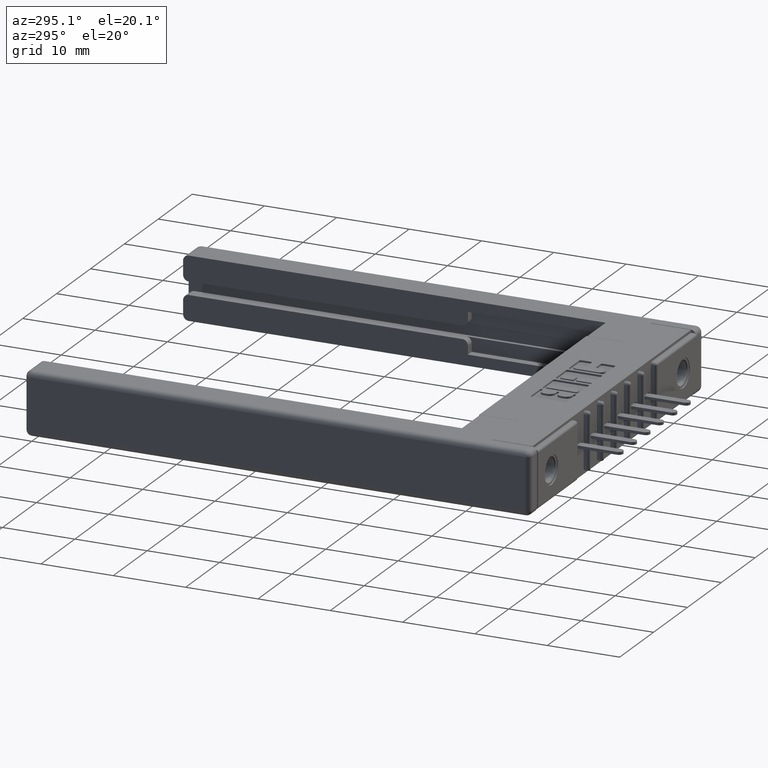
[diagram: clean part render]
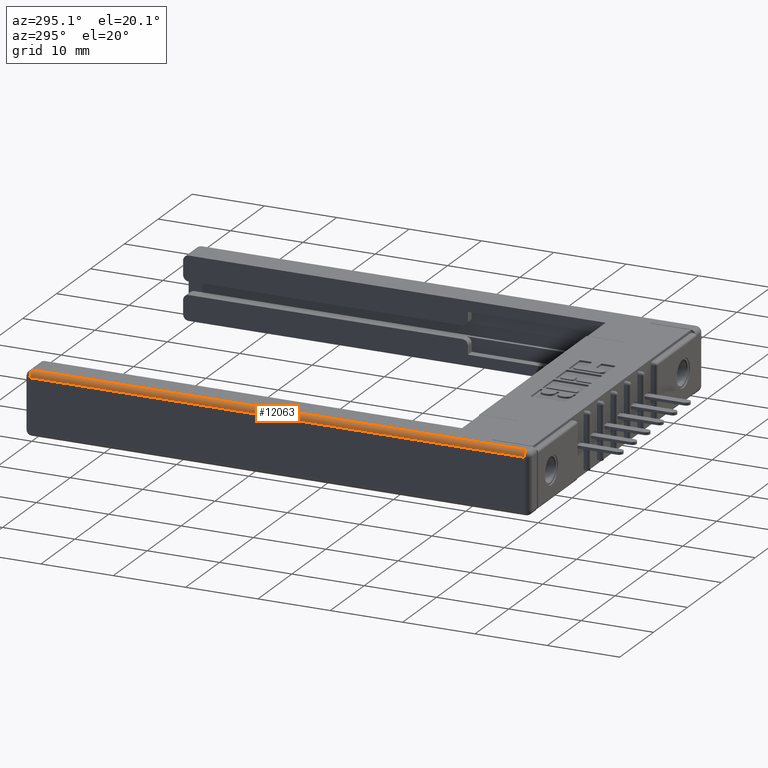
[diagram: same view with one face highlighted and labeled with its STEP entity id]
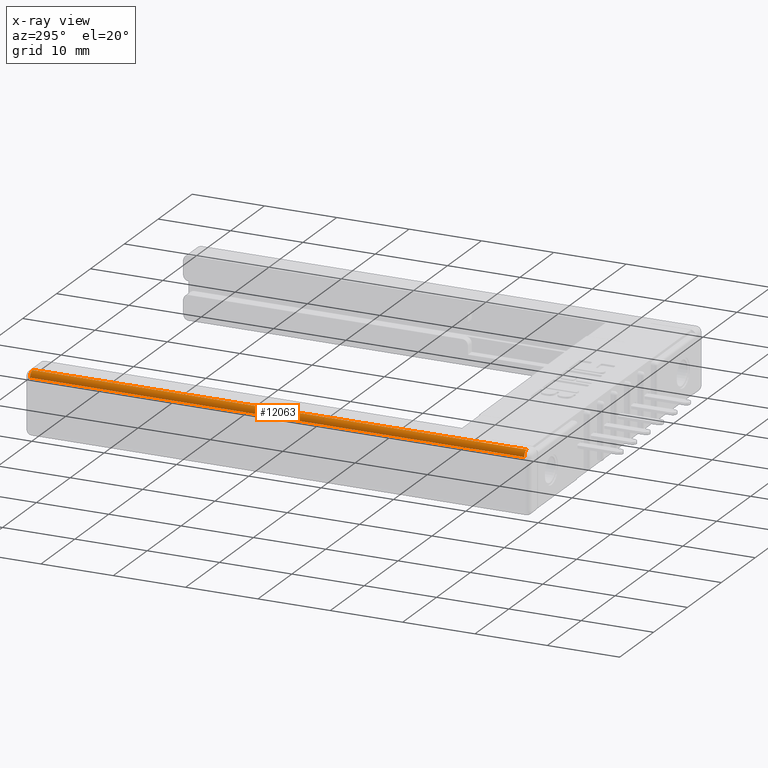
[diagram: x-ray of the same camera — body ghosted, the highlighted face saturated]
A machine part, auxiliary view. The second image highlights one B-rep face of the part: STEP entity #12063.
The next image is the same camera in x-ray: the body ghosted, the highlighted face saturated — about 0% of this face is hidden behind the body in this view.
In plain terms, the highlighted cylindrical surface (edge-blend (fillet) strip) has radius 0.762 mm, axis along (0, 1, 0).
Its self-contained STEP definition (entity closure, byte-faithful):
#260 = AXIS2_PLACEMENT_3D ( 'NONE', #9244, #9083, #7203 ) ;
#286 = AXIS2_PLACEMENT_3D ( 'NONE', #12642, #12807, #12741 ) ;
#309 = CARTESIAN_POINT ( 'NONE',  ( 0.02999999999999999900, 0.0000000000000000000, -0.02999999999999999900 ) ) ;
#778 = ORIENTED_EDGE ( 'NONE', *, *, #5235, .F. ) ;
#953 = EDGE_LOOP ( 'NONE', ( #2848, #2536, #778, #9943 ) ) ;
#960 = CIRCLE ( 'NONE', #260, 0.02999999999999999900 ) ;
#1505 = DIRECTION ( 'NONE',  ( 0.0000000000000000000, 1.000000000000000000, 0.0000000000000000000 ) ) ;
#2248 = DIRECTION ( 'NONE',  ( -0.0000000000000000000, 1.000000000000000000, -0.0000000000000000000 ) ) ;
#2475 = LINE ( 'NONE', #2890, #5107 ) ;
#2536 = ORIENTED_EDGE ( 'NONE', *, *, #4586, .F. ) ;
#2548 = VERTEX_POINT ( 'NONE', #10000 ) ;
#2848 = ORIENTED_EDGE ( 'NONE', *, *, #5215, .T. ) ;
#2890 = CARTESIAN_POINT ( 'NONE',  ( 0.0000000000000000000, 2.750000000000000000, -0.02999999999999999900 ) ) ;
#3735 = CIRCLE ( 'NONE', #286, 0.02999999999999999900 ) ;
#3957 = DIRECTION ( 'NONE',  ( 0.0000000000000000000, -1.000000000000000000, 0.0000000000000000000 ) ) ;
#4163 = CARTESIAN_POINT ( 'NONE',  ( 0.0000000000000000000, 0.02999999999999998800, -0.02999999999999999900 ) ) ;
#4177 = AXIS2_PLACEMENT_3D ( 'NONE', #309, #1505, #6845 ) ;
#4586 = EDGE_CURVE ( 'NONE', #8773, #2548, #2475, .T. ) ;
#4812 = EDGE_CURVE ( 'NONE', #7892, #9814, #5693, .T. ) ;
#5044 = CARTESIAN_POINT ( 'NONE',  ( 0.02999999999999999900, 0.0000000000000000000, 0.0000000000000000000 ) ) ;
#5107 = VECTOR ( 'NONE', #2248, 39.37007874015748100 ) ;
#5215 = EDGE_CURVE ( 'NONE', #7892, #2548, #3735, .T. ) ;
#5235 = EDGE_CURVE ( 'NONE', #9814, #8773, #960, .T. ) ;
#5693 = LINE ( 'NONE', #5044, #12824 ) ;
#6845 = DIRECTION ( 'NONE',  ( 0.0000000000000000000, 0.0000000000000000000, 1.000000000000000000 ) ) ;
#7203 = DIRECTION ( 'NONE',  ( 0.0000000000000000000, 0.0000000000000000000, -1.000000000000000000 ) ) ;
#7572 = FACE_OUTER_BOUND ( 'NONE', #953, .T. ) ;
#7892 = VERTEX_POINT ( 'NONE', #8336 ) ;
#8336 = CARTESIAN_POINT ( 'NONE',  ( 0.02999999999999999900, 2.719999999999999800, 0.0000000000000000000 ) ) ;
#8773 = VERTEX_POINT ( 'NONE', #4163 ) ;
#9083 = DIRECTION ( 'NONE',  ( 0.0000000000000000000, -1.000000000000000000, 0.0000000000000000000 ) ) ;
#9244 = CARTESIAN_POINT ( 'NONE',  ( 0.02999999999999999900, 0.02999999999999998800, -0.02999999999999999900 ) ) ;
#9814 = VERTEX_POINT ( 'NONE', #12438 ) ;
#9943 = ORIENTED_EDGE ( 'NONE', *, *, #4812, .F. ) ;
#10000 = CARTESIAN_POINT ( 'NONE',  ( 0.0000000000000000000, 2.719999999999999800, -0.02999999999999999900 ) ) ;
#12063 = ADVANCED_FACE ( 'NONE', ( #7572 ), #12069, .T. ) ;
#12069 = CYLINDRICAL_SURFACE ( 'NONE', #4177, 0.02999999999999999900 ) ;
#12438 = CARTESIAN_POINT ( 'NONE',  ( 0.02999999999999999900, 0.02999999999999998800, 0.0000000000000000000 ) ) ;
#12642 = CARTESIAN_POINT ( 'NONE',  ( 0.02999999999999999900, 2.719999999999999800, -0.02999999999999999900 ) ) ;
#12741 = DIRECTION ( 'NONE',  ( 0.0000000000000000000, 0.0000000000000000000, 1.000000000000000000 ) ) ;
#12807 = DIRECTION ( 'NONE',  ( -0.0000000000000000000, -1.000000000000000000, 0.0000000000000000000 ) ) ;
#12824 = VECTOR ( 'NONE', #3957, 39.37007874015748100 ) ;